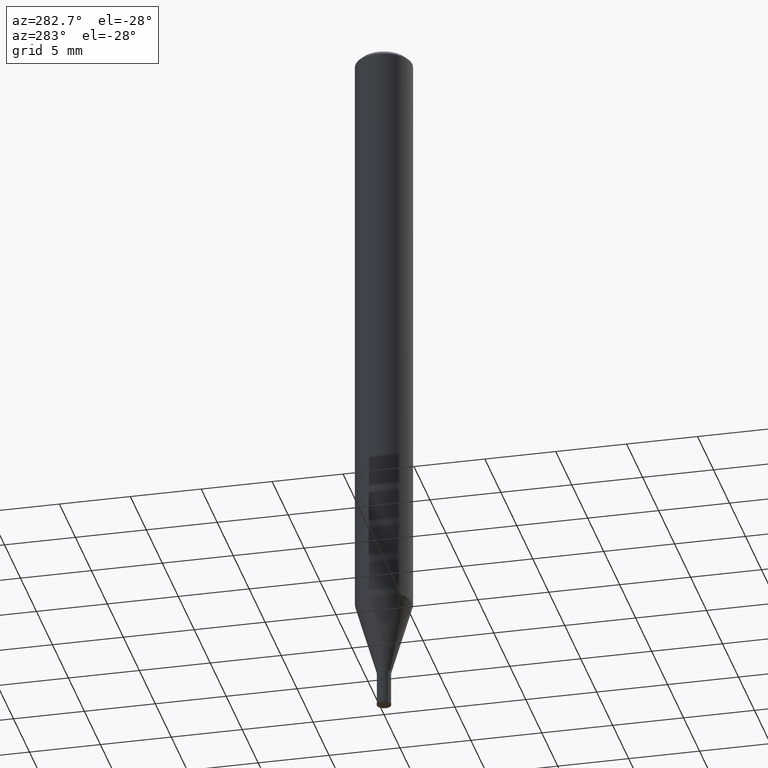
[diagram: clean part render]
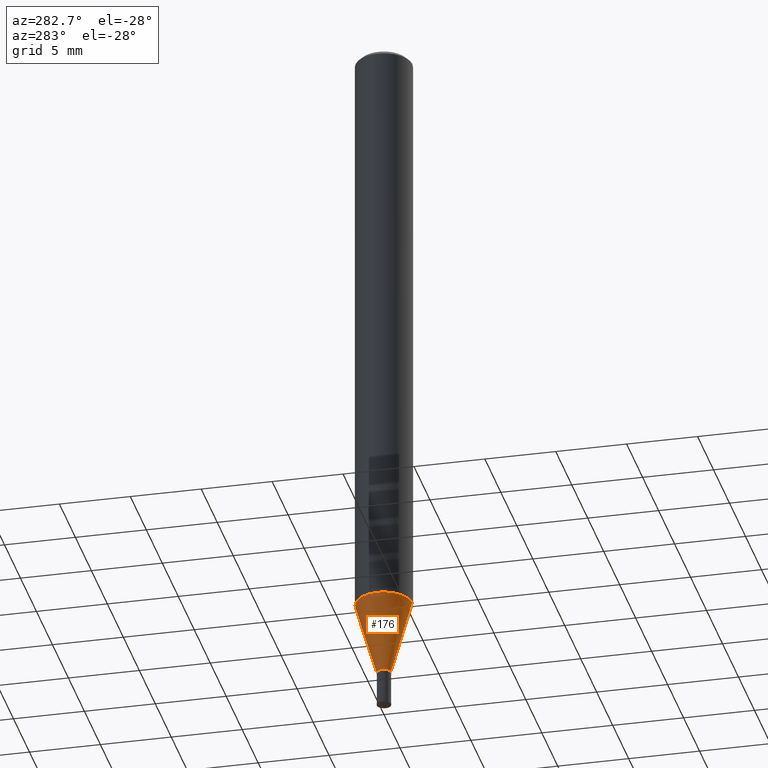
[diagram: same view with one face highlighted and labeled with its STEP entity id]
A machine part, auxiliary view. The second image highlights one B-rep face of the part: STEP entity #176.
In plain terms, the highlighted conical surface has half-angle 16 deg.
Its self-contained STEP definition (entity closure, byte-faithful):
#90=VERTEX_POINT('',#213);
#92=VERTEX_POINT('',#215);
#108=EDGE_CURVE('',#92,#90,#234,.T.);
#132=VERTEX_POINT('',#261);
#138=EDGE_CURVE('',#150,#132,#268,.T.);
#146=EDGE_CURVE('',#132,#90,#276,.T.);
#150=VERTEX_POINT('',#281);
#176=ADVANCED_FACE('',(#310),#311,.T.);
#184=EDGE_CURVE('',#92,#150,#319,.T.);
#213=CARTESIAN_POINT('',(0.0,0.49995,-47.5));
#215=CARTESIAN_POINT('',(6.12241946593498E-017,-0.49995,-47.5));
#234=CIRCLE('',#365,0.49995);
#261=CARTESIAN_POINT('',(0.0,1.99995,-42.269));
#268=CIRCLE('',#406,1.99995);
#276=LINE('',#415,#416);
#281=CARTESIAN_POINT('',(2.44915147732706E-016,-1.99995,-42.269));
#310=FACE_OUTER_BOUND('',#462,.T.);
#311=CONICAL_SURFACE('',#463,1.24995,0.279258842899557);
#319=LINE('',#473,#474);
#365=AXIS2_PLACEMENT_3D('',#515,#516,#517);
#406=AXIS2_PLACEMENT_3D('',#553,#554,#555);
#415=CARTESIAN_POINT('',(-1.53069671196028E-016,1.24995,-44.8845));
#416=VECTOR('',#560,1.0);
#462=EDGE_LOOP('',(#613,#614,#615,#616));
#463=AXIS2_PLACEMENT_3D('',#617,#618,#619);
#473=CARTESIAN_POINT('',(1.53069671196028E-016,-1.24995,-44.8845));
#474=VECTOR('',#623,1.0);
#515=CARTESIAN_POINT('',(0.0,0.0,-47.5));
#516=DIRECTION('',(0.0,0.0,-1.0));
#517=DIRECTION('',(0.0,1.0,0.0));
#553=CARTESIAN_POINT('',(0.0,0.0,-42.269));
#554=DIRECTION('',(0.0,0.0,-1.0));
#555=DIRECTION('',(0.0,1.0,0.0));
#560=DIRECTION('',(3.37554511665357E-017,-0.275643279664314,-0.961259997282682));
#613=ORIENTED_EDGE('',*,*,#146,.T.);
#614=ORIENTED_EDGE('',*,*,#108,.F.);
#615=ORIENTED_EDGE('',*,*,#184,.T.);
#616=ORIENTED_EDGE('',*,*,#138,.T.);
#617=CARTESIAN_POINT('',(0.0,0.0,-44.8845));
#618=DIRECTION('',(-0.0,-0.0,1.0));
#619=DIRECTION('',(0.0,1.0,0.0));
#623=DIRECTION('',(3.37554511665357E-017,-0.275643279664314,0.961259997282682));